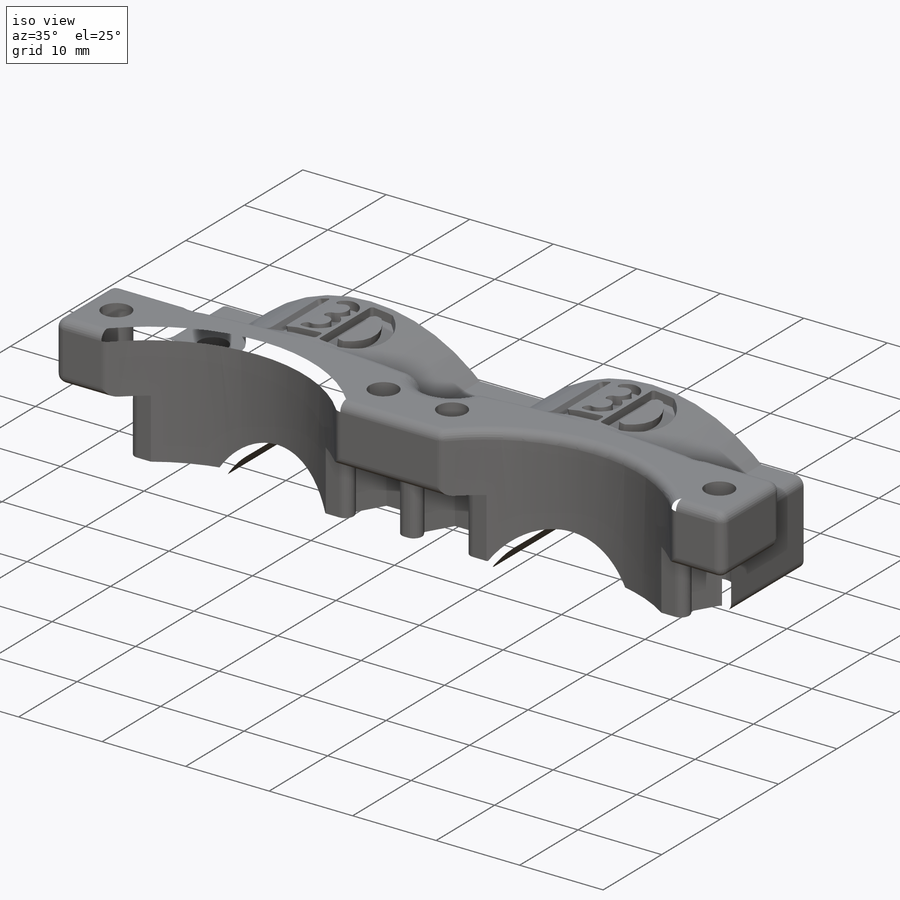
[diagram: iso view]
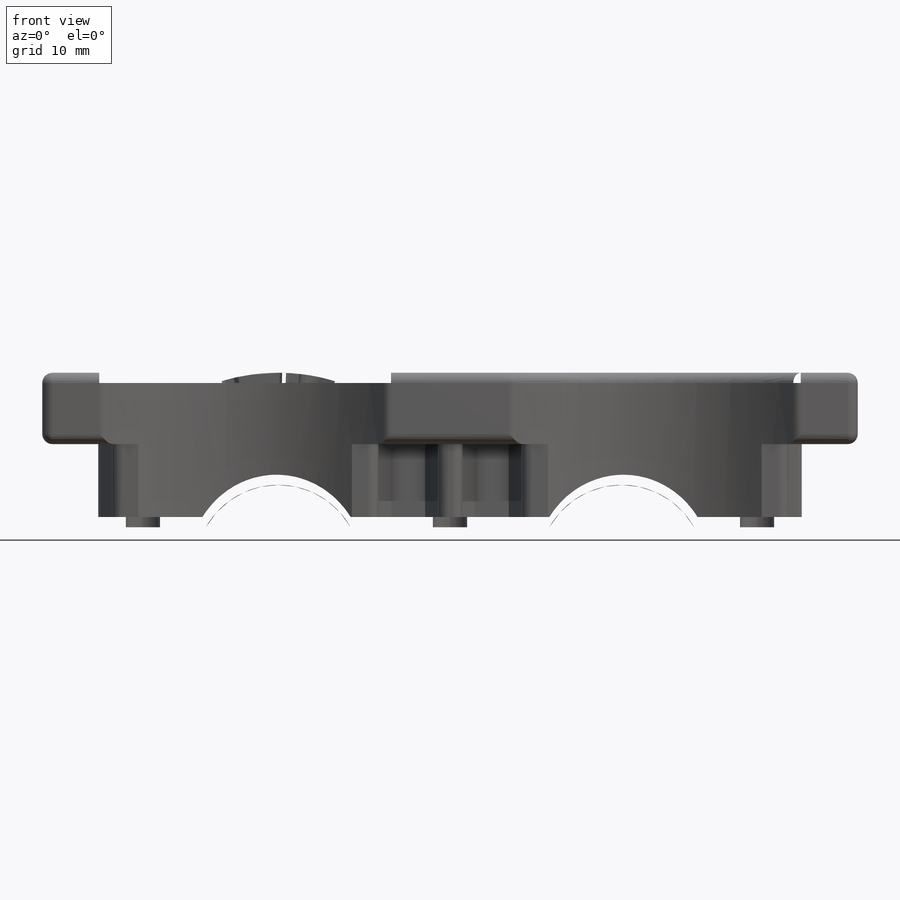
[diagram: front view]
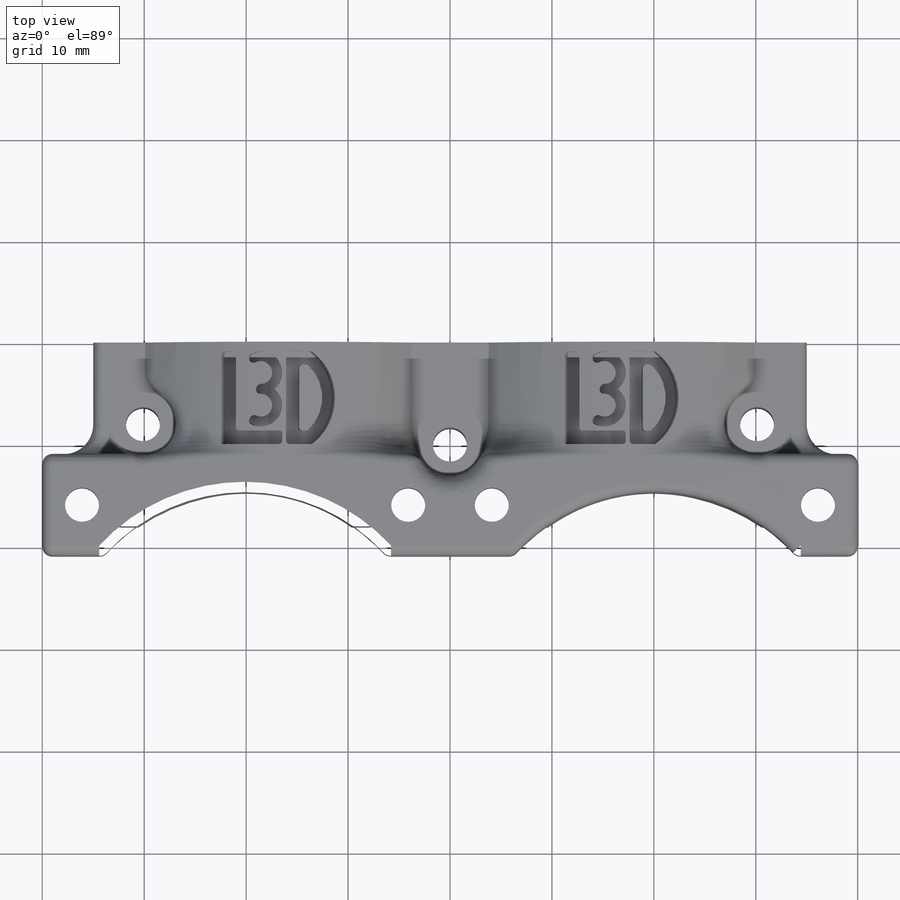
[diagram: top view]
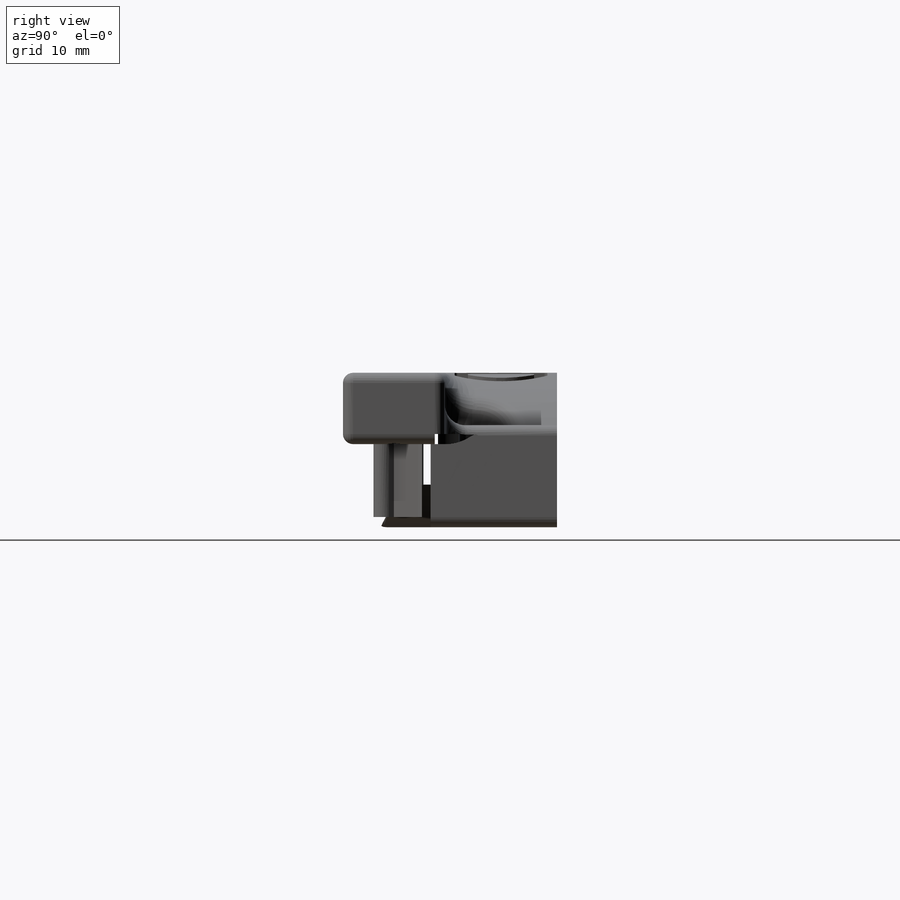
[diagram: right view]
SOLIDWORKS PART (.sldprt)
format: sldprt  version: not decoded by parser v0  size: 1,564,160 bytes
history: native  units: mm
features: sketch x7, cut_extrude x4, fillet x4, extrude x3, plane x2, material x1 (+13 scaffold rows collapsed)
feature tree (34):
  scaffold x13  (default folders/planes/origin — collapsed)
  material  "ABS"
  sketch  "Sketch1"  dims[c1.D1=~25.105588mm c1.D2=16.3mm c1.D3=25.5mm c1.D6=38.3mm c2.D1=33.7mm c2.D4=70.0mm c2.D5=4.0mm c2.D7=10.0mm c2.D8=35.0mm]
  extrude  "Boss-Extrude1"  Depth=18mm
  plane  "Plane1"  Offset=20mm
  extrude  "Axis2"  [1 undecoded]
  plane  "Plane2"  Offset=7mm
  sketch  "Sketch5"  dims[c1.D2=14.0mm c1.D1=12.75mm c2.D2=3.0mm c2.D1=13.0mm c2.D3=80.0mm c2.D4=40.0mm c2.D5=7.0mm c3.D1=80.0mm]
  extrude  "Boss-Extrude3"  Depth=10mm
  sketch  "Sketch2"  dims[c1.D1=~4.16919mm c1.D2=~4.16919mm c1.D3=~4.16919mm c1.D4=3.35mm c1.D5=3.35mm c2.D1=10.0mm c2.D2=30.12mm c2.D3=30.12mm c2.D5=8.0mm]
  cut_extrude  "Cut-Extrude5"  [1 undecoded]
  sketch  "Sketch3"  dims[D1=6.4mm]
  cut_extrude  "Cut-Extrude6"  [1 undecoded]
  sketch  "Sketch4"  dims[c1.D4=~4.656672mm c1.D9=0.5mm c1.D1=2.0mm c1.D2=2.0mm c1.D3=8.0mm c2.D4=1.5mm c2.D5=14.0mm c2.D3=1.5mm c3.D4=0.6mm c3.D7=~9.270347mm c3.D8=7.5mm c3.D9=12.4mm c4.D9=60.0deg c4.D6=0.6mm c4.D10=2.0mm c4.D1=2.0 c5.D1=1.0mm]
  sketch  "Sketch6"  dims[c1.D1=37.0mm c1.D2=38.5mm c1.D3=3.35mm c1.D4=3.35mm c1.D5=3.35mm c1.D6=3.35mm c1.D7=3.35mm c2.D2=3.35mm c2.D7=38.5mm c3.D2=20.25mm c3.D4=32.0mm c3.D5=32.0mm c3.D6=8.2mm c3.D7=4.2mm c3.D8=20.1mm c3.D9=20.1mm c4.D2=5.0mm c4.D7=22.25mm]
  cut_extrude  "Cut-Extrude3"  [1 undecoded]
  sketch  "Sketch7"  dims[D1=5.75mm]
  cut_extrude  "Cut-Extrude4"  Depth=2mm
  fillet  "Fillet2"  Radius=3mm
  fillet  "Fillet3"  Radius=2mm
  fillet  "Fillet4"  Radius=1mm
  fillet  "Fillet5"  Radius=1mm
decode coverage: 14 of 18 modeling features carry decoded parameters
note: ~ marks probable driven/reference dimensions
note: 4 parameter values undecoded
summary: no parameter record found for 4 features
note: suppression state not decoded; provenance and decode notes live in map.json
